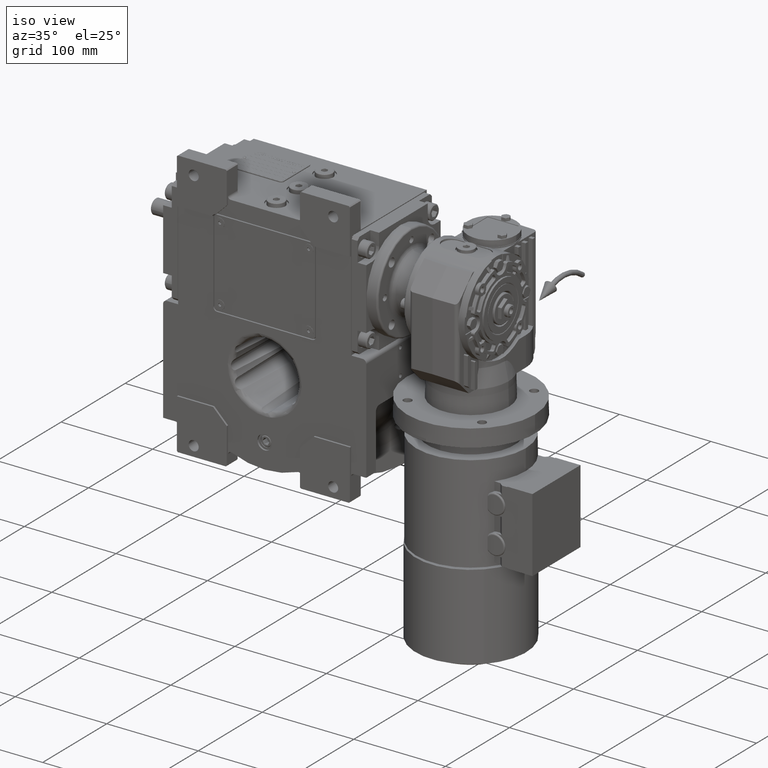
[diagram: clean part render]
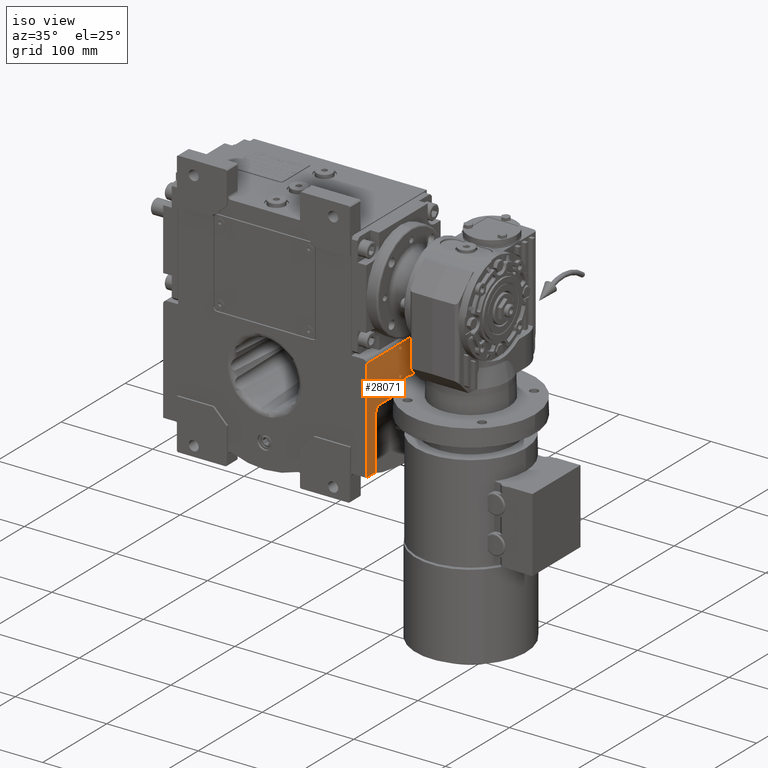
[diagram: same view with one face highlighted and labeled with its STEP entity id]
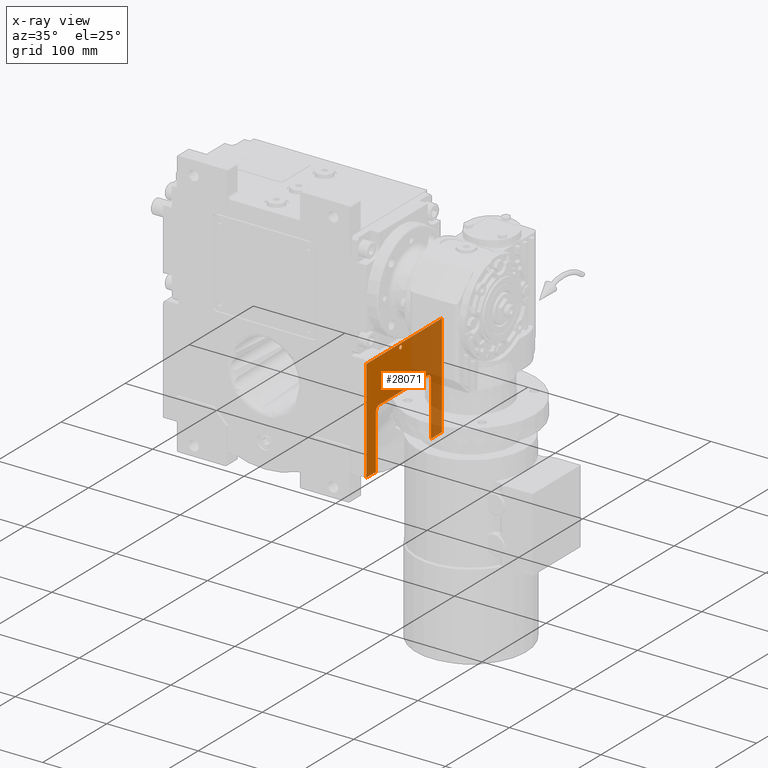
[diagram: x-ray of the same camera — body ghosted, the highlighted face saturated]
A machine part, iso view. The second image highlights one B-rep face of the part: STEP entity #28071.
The next image is the same camera in x-ray: the body ghosted, the highlighted face saturated — about 43% of this face is hidden behind the body in this view.
In plain terms, the highlighted planar face has unit normal (1, 0, -0).
Its self-contained STEP definition (entity closure, byte-faithful):
#464 = EDGE_CURVE ( 'NONE', #56667, #6692, #89729, .T. ) ;
#985 = CARTESIAN_POINT ( 'NONE',  ( 110.9999999999999574, 45.57333248245377177, -8.163234121736138604 ) ) ;
#1204 = CIRCLE ( 'NONE', #22630, 2.100000000000000089 ) ;
#1499 = CARTESIAN_POINT ( 'NONE',  ( 110.9999999999999858, 46.71432597020061195, -9.644020489599460788 ) ) ;
#2015 = CARTESIAN_POINT ( 'NONE',  ( 111.0000000000000000, 46.02269117539044885, -8.607473829627073414 ) ) ;
#2478 = CARTESIAN_POINT ( 'NONE',  ( 110.9999999999999858, 47.37382107352491545, -17.01630155678829581 ) ) ;
#3462 = EDGE_CURVE ( 'NONE', #67907, #93886, #23219, .T. ) ;
#4496 = EDGE_CURVE ( 'NONE', #24629, #56468, #93172, .T. ) ;
#5657 = CARTESIAN_POINT ( 'NONE',  ( 111.0000000000000000, -2.100000000000000089, 9.000000000000000000 ) ) ;
#6645 = EDGE_LOOP ( 'NONE', ( #7192, #20049 ) ) ;
#6692 = VERTEX_POINT ( 'NONE', #31850 ) ;
#7192 = ORIENTED_EDGE ( 'NONE', *, *, #97587, .F. ) ;
#7612 = DIRECTION ( 'NONE',  ( 0.000000000000000000, -1.000000000000000000, 0.000000000000000000 ) ) ;
#8720 = CARTESIAN_POINT ( 'NONE',  ( 110.9999999999999147, 47.39592956473512686, -17.94582316151957713 ) ) ;
#9185 = ORIENTED_EDGE ( 'NONE', *, *, #102412, .T. ) ;
#10767 = CARTESIAN_POINT ( 'NONE',  ( 110.9999999999999858, 47.35262548411426309, -16.14045418600772308 ) ) ;
#11170 = CIRCLE ( 'NONE', #62549, 2.100000000000000089 ) ;
#13472 = CARTESIAN_POINT ( 'NONE',  ( 111.0000000000000000, 47.50000000000000000, -71.43528539874399996 ) ) ;
#14288 = DIRECTION ( 'NONE',  ( 1.000000000000000000, 0.000000000000000000, -6.102469138343910279E-16 ) ) ;
#15369 = LINE ( 'NONE', #79179, #32213 ) ;
#16513 = DIRECTION ( 'NONE',  ( 0.000000000000000000, 1.000000000000000000, -1.652117596168387559E-15 ) ) ;
#17278 = VERTEX_POINT ( 'NONE', #60478 ) ;
#17472 = ORIENTED_EDGE ( 'NONE', *, *, #29917, .F. ) ;
#17541 = CARTESIAN_POINT ( 'NONE',  ( 110.9999998869266022, 47.24161831933449918, -11.75654022255562126 ) ) ;
#18821 = ORIENTED_EDGE ( 'NONE', *, *, #31999, .F. ) ;
#19036 = CARTESIAN_POINT ( 'NONE',  ( 110.9999999999999716, 47.37947912676571605, -17.25058397870262894 ) ) ;
#19120 = CARTESIAN_POINT ( 'NONE',  ( 111.0000000000000000, -3.552713678800499352E-15, 37.00000000000000000 ) ) ;
#20049 = ORIENTED_EDGE ( 'NONE', *, *, #91976, .F. ) ;
#20061 = VECTOR ( 'NONE', #30210, 1000.000000000000000 ) ;
#22246 = DIRECTION ( 'NONE',  ( 1.000000000000000000, -1.144832152701696034E-29, -6.767073673905710947E-15 ) ) ;
#22630 = AXIS2_PLACEMENT_3D ( 'NONE', #31049, #22246, #16513 ) ;
#23219 =( BOUNDED_CURVE ( )  B_SPLINE_CURVE ( 3, ( #45950, #61548, #94772, #77626 ),
 .UNSPECIFIED., .F., .F. ) 
 B_SPLINE_CURVE_WITH_KNOTS ( ( 4, 4 ),
 ( 1.570796326796059850, 3.141592653590837614 ),
 .UNSPECIFIED. ) 
 CURVE ( )  GEOMETRIC_REPRESENTATION_ITEM ( )  RATIONAL_B_SPLINE_CURVE ( ( 1.000000000000000000, 0.8047378541243930261, 0.8047378541243930261, 1.000000000000000000 ) ) 
 REPRESENTATION_ITEM ( '' )  );
#24482 = DIRECTION ( 'NONE',  ( 1.000000000000000000, 0.000000000000000000, 0.000000000000000000 ) ) ;
#24629 = VERTEX_POINT ( 'NONE', #5657 ) ;
#24815 = CARTESIAN_POINT ( 'NONE',  ( 110.9999999999999716, 46.32234190798379103, -8.967372511752580877 ) ) ;
#25213 = LINE ( 'NONE', #26229, #85895 ) ;
#25399 = CARTESIAN_POINT ( 'NONE',  ( 111.0000000000000000, -38.50000000000000000, -71.43528539874399996 ) ) ;
#25782 = CARTESIAN_POINT ( 'NONE',  ( 111.0000000000000000, -33.50000000000000000, -7.000000000000000000 ) ) ;
#25864 = CARTESIAN_POINT ( 'NONE',  ( 111.0000000000000000, -2.100000000000000089, 37.00000000000000000 ) ) ;
#26180 = AXIS2_PLACEMENT_3D ( 'NONE', #85383, #14288, #46927 ) ;
#26229 = CARTESIAN_POINT ( 'NONE',  ( 111.0000000000000000, 47.50000000000000000, -71.43528539874399996 ) ) ;
#26747 = EDGE_CURVE ( 'NONE', #93886, #62709, #86381, .T. ) ;
#28071 = ADVANCED_FACE ( 'NONE', ( #77074, #45396, #37129 ), #69811, .T. ) ;
#28523 = CARTESIAN_POINT ( 'NONE',  ( 110.9999999998199911, 42.40620941354220008, -7.000000000048170357 ) ) ;
#29320 = CARTESIAN_POINT ( 'NONE',  ( 111.0000000000000000, -33.50000000000000000, -6.999999999999920064 ) ) ;
#29917 = EDGE_CURVE ( 'NONE', #59836, #75219, #25213, .T. ) ;
#30210 = DIRECTION ( 'NONE',  ( -6.319570704518690450E-16, 0.000000000000000000, -1.000000000000000000 ) ) ;
#30235 = ORIENTED_EDGE ( 'NONE', *, *, #3462, .T. ) ;
#31049 = CARTESIAN_POINT ( 'NONE',  ( 111.0000000000000000, -3.552713678800499352E-15, 9.000000000000000000 ) ) ;
#31627 = ORIENTED_EDGE ( 'NONE', *, *, #85727, .T. ) ;
#31850 = CARTESIAN_POINT ( 'NONE',  ( 111.0000000000000000, -53.50000000000000000, 41.00000000000000000 ) ) ;
#31999 = EDGE_CURVE ( 'NONE', #17278, #45749, #101376, .T. ) ;
#32213 = VECTOR ( 'NONE', #7612, 1000.000000000000000 ) ;
#32431 = ORIENTED_EDGE ( 'NONE', *, *, #51255, .T. ) ;
#33071 = CARTESIAN_POINT ( 'NONE',  ( 111.0000000000000000, 47.50000000000000000, -25.44626115736659955 ) ) ;
#36689 = LINE ( 'NONE', #91747, #69098 ) ;
#37129 = FACE_OUTER_BOUND ( 'NONE', #100364, .T. ) ;
#39247 = VERTEX_POINT ( 'NONE', #57168 ) ;
#39873 = CARTESIAN_POINT ( 'NONE',  ( 110.9999999999999858, 44.09122816550473800, -7.296733665612587849 ) ) ;
#40059 = CARTESIAN_POINT ( 'NONE',  ( 111.0000000000000000, -3.774758283725534604E-15, 37.00000000000000000 ) ) ;
#40389 = CARTESIAN_POINT ( 'NONE',  ( 110.9999999999999858, 44.80922033797410364, -7.621655160203046009 ) ) ;
#40859 = CARTESIAN_POINT ( 'NONE',  ( 110.9999999999999574, 47.26250817921272329, -12.53135113091263264 ) ) ;
#41519 = B_SPLINE_CURVE_WITH_KNOTS ( 'NONE', 3,
 ( #81841, #40859, #58481, #10767, #2478, #56938, #19036, #80291, #50696, #8720, #95912, #41885, #33071 ),
 .UNSPECIFIED., .F., .F.,
 ( 4, 1, 1, 1, 2, 2, 1, 1, 4 ),
 ( 0.000000000000000000, 0.2499999999999993339, 0.3749999999999991673, 0.3906249999999991673, 0.3984374999999988898, 0.4062499999999986122, 0.4374999999999987788, 0.4999999999999991118, 1.000000000000000000 ),
 .UNSPECIFIED. ) ;
#41885 = CARTESIAN_POINT ( 'NONE',  ( 110.9999999999999574, 47.49300976463167956, -23.37757664004382363 ) ) ;
#42076 = CARTESIAN_POINT ( 'NONE',  ( 110.9999998869266022, 47.24161831933449918, -11.75654022255562126 ) ) ;
#42470 = DIRECTION ( 'NONE',  ( 6.319570704518680589E-16, 0.000000000000000000, 1.000000000000000000 ) ) ;
#42872 = VECTOR ( 'NONE', #42470, 1000.000000000000000 ) ;
#44197 = VECTOR ( 'NONE', #69789, 1000.000000000000000 ) ;
#45396 = FACE_BOUND ( 'NONE', #6645, .T. ) ;
#45749 = VERTEX_POINT ( 'NONE', #68116 ) ;
#45950 = CARTESIAN_POINT ( 'NONE',  ( 111.0000000000000000, -38.50000000000000000, -12.17638090205032064 ) ) ;
#46621 = DIRECTION ( 'NONE',  ( 0.000000000000000000, 1.000000000000000000, 8.359326303060000099E-16 ) ) ;
#46927 = DIRECTION ( 'NONE',  ( -6.102469138343910279E-16, 0.000000000000000000, -1.000000000000000000 ) ) ;
#47283 = CARTESIAN_POINT ( 'NONE',  ( 111.0000000000000000, -38.50000000000000000, -12.17638090205032064 ) ) ;
#48153 = CARTESIAN_POINT ( 'NONE',  ( 110.9999999999999716, 43.19493036065947678, -7.045511204842088482 ) ) ;
#49273 = DIRECTION ( 'NONE',  ( 7.194288269028780008E-16, 0.000000000000000000, 1.000000000000000000 ) ) ;
#50258 = CARTESIAN_POINT ( 'NONE',  ( 111.0000000000000000, -53.50000000000000000, -71.43528539874399996 ) ) ;
#50696 = CARTESIAN_POINT ( 'NONE',  ( 110.9999999999999574, 47.38500262563848509, -17.48094355212767326 ) ) ;
#50791 = DIRECTION ( 'NONE',  ( 1.000000000000000000, 0.000000000000000000, 0.000000000000000000 ) ) ;
#51255 = EDGE_CURVE ( 'NONE', #59836, #45749, #101707, .T. ) ;
#51731 = EDGE_CURVE ( 'NONE', #17278, #6692, #15369, .T. ) ;
#52991 = DIRECTION ( 'NONE',  ( 0.000000000000000000, -1.000000000000000000, 1.652117596168387559E-15 ) ) ;
#53512 = ORIENTED_EDGE ( 'NONE', *, *, #51731, .T. ) ;
#53551 = CIRCLE ( 'NONE', #81731, 2.100000000000000089 ) ;
#54808 = CARTESIAN_POINT ( 'NONE',  ( 111.0000000000000000, 2.100000000000000089, 37.00000000000000000 ) ) ;
#55606 = ORIENTED_EDGE ( 'NONE', *, *, #93842, .T. ) ;
#55616 = VERTEX_POINT ( 'NONE', #25864 ) ;
#56468 = VERTEX_POINT ( 'NONE', #78288 ) ;
#56497 = EDGE_CURVE ( 'NONE', #56468, #24629, #1204, .T. ) ;
#56667 = VERTEX_POINT ( 'NONE', #82402 ) ;
#56938 = CARTESIAN_POINT ( 'NONE',  ( 110.9999999999999574, 47.37721023959501565, -17.15660303781627150 ) ) ;
#56982 = CARTESIAN_POINT ( 'NONE',  ( 110.9999999999999858, 47.09297238319260259, -10.50863868843677196 ) ) ;
#57168 = CARTESIAN_POINT ( 'NONE',  ( 111.0000000000000000, -38.50000000000000000, -71.43528539874399996 ) ) ;
#57835 = VERTEX_POINT ( 'NONE', #54808 ) ;
#58481 = CARTESIAN_POINT ( 'NONE',  ( 110.9999999999999432, 47.30109702303251140, -14.03657177442504000 ) ) ;
#59557 = DIRECTION ( 'NONE',  ( 0.000000000000000000, 1.000000000000000000, 0.000000000000000000 ) ) ;
#59836 = VERTEX_POINT ( 'NONE', #90499 ) ;
#60085 = CARTESIAN_POINT ( 'NONE',  ( 111.0000000000000000, 47.50000000000000000, -25.44626115736659955 ) ) ;
#60478 = CARTESIAN_POINT ( 'NONE',  ( 111.0000000000000000, 64.50000000000000000, 41.00000000000000000 ) ) ;
#60612 = ORIENTED_EDGE ( 'NONE', *, *, #26747, .T. ) ;
#60685 = EDGE_LOOP ( 'NONE', ( #68753, #89896 ) ) ;
#61548 = CARTESIAN_POINT ( 'NONE',  ( 110.9999999999999574, -38.49999999999984368, -9.144127173638265660 ) ) ;
#61787 = B_SPLINE_CURVE_WITH_KNOTS ( 'NONE', 3,
 ( #63239, #94934, #48153, #64271, #79307, #39873, #71539, #40389, #72037, #985, #2015, #24815, #65296, #1499, #86601, #64795, #56982, #88643, #17541 ),
 .UNSPECIFIED., .F., .F.,
 ( 4, 1, 2, 2, 2, 2, 1, 1, 2, 2, 4 ),
 ( 0.000000000000000000, 0.1250000000000034972, 0.1875000000000038580, 0.2500000000000042188, 0.3750000000000024425, 0.5000000000000007772, 0.6249999999999996669, 0.6874999999999983347, 0.7187499999999980016, 0.7499999999999976685, 1.000000000000000000 ),
 .UNSPECIFIED. ) ;
#62394 = DIRECTION ( 'NONE',  ( 0.000000000000000000, -1.000000000000000000, 0.000000000000000000 ) ) ;
#62549 = AXIS2_PLACEMENT_3D ( 'NONE', #19120, #50791, #91802 ) ;
#62709 = VERTEX_POINT ( 'NONE', #28523 ) ;
#63239 = CARTESIAN_POINT ( 'NONE',  ( 110.9999999998199911, 42.40620941354220008, -7.000000000048170357 ) ) ;
#64271 = CARTESIAN_POINT ( 'NONE',  ( 111.0000000000000000, 43.64749740373729026, -7.156724411048934087 ) ) ;
#64795 = CARTESIAN_POINT ( 'NONE',  ( 111.0000000000000000, 46.81641276431729892, -9.859722511584925186 ) ) ;
#65296 = CARTESIAN_POINT ( 'NONE',  ( 110.9999999999999716, 46.60653992690171776, -9.434012384678485574 ) ) ;
#67907 = VERTEX_POINT ( 'NONE', #47283 ) ;
#68116 = CARTESIAN_POINT ( 'NONE',  ( 111.0000000000000000, 64.50000000000000000, -71.43528539874399996 ) ) ;
#68753 = ORIENTED_EDGE ( 'NONE', *, *, #56497, .F. ) ;
#69098 = VECTOR ( 'NONE', #59557, 1000.000000000000000 ) ;
#69789 = DIRECTION ( 'NONE',  ( 0.000000000000000000, 1.000000000000000000, 0.000000000000000000 ) ) ;
#69811 = PLANE ( 'NONE',  #26180 ) ;
#71539 = CARTESIAN_POINT ( 'NONE',  ( 111.0000000000000000, 44.53223597866741557, -7.476123301251936581 ) ) ;
#72037 = CARTESIAN_POINT ( 'NONE',  ( 110.9999999999999858, 45.32914735765071867, -7.964596415155019038 ) ) ;
#73481 = EDGE_CURVE ( 'NONE', #56667, #39247, #36689, .T. ) ;
#75219 = VERTEX_POINT ( 'NONE', #60085 ) ;
#77074 = FACE_BOUND ( 'NONE', #60685, .T. ) ;
#77097 = VERTEX_POINT ( 'NONE', #42076 ) ;
#77626 = CARTESIAN_POINT ( 'NONE',  ( 111.0000000000000000, -33.50000000000000000, -7.000000000000000000 ) ) ;
#78288 = CARTESIAN_POINT ( 'NONE',  ( 111.0000000000000000, 2.100000000000000089, 9.000000000000000000 ) ) ;
#79179 = CARTESIAN_POINT ( 'NONE',  ( 111.0000000000000000, 64.50000000000000000, 41.00000000000000000 ) ) ;
#79288 = VECTOR ( 'NONE', #49273, 1000.000000000000000 ) ;
#79307 = CARTESIAN_POINT ( 'NONE',  ( 111.0000000000000284, 43.94558323494667462, -7.245586984187109891 ) ) ;
#80291 = CARTESIAN_POINT ( 'NONE',  ( 111.0000000000000000, 47.38034144301978046, -17.28637658354777784 ) ) ;
#81731 = AXIS2_PLACEMENT_3D ( 'NONE', #40059, #24482, #62394 ) ;
#81841 = CARTESIAN_POINT ( 'NONE',  ( 110.9999998869266022, 47.24161831933449918, -11.75654022255562126 ) ) ;
#81974 = ORIENTED_EDGE ( 'NONE', *, *, #464, .F. ) ;
#82402 = CARTESIAN_POINT ( 'NONE',  ( 111.0000000000000000, -53.50000000000000000, -71.43528539874399996 ) ) ;
#84025 = ORIENTED_EDGE ( 'NONE', *, *, #73481, .T. ) ;
#85383 = CARTESIAN_POINT ( 'NONE',  ( 111.0000000000000000, -53.50000000000000000, 45.00000000000000000 ) ) ;
#85727 = EDGE_CURVE ( 'NONE', #39247, #67907, #96561, .T. ) ;
#85895 = VECTOR ( 'NONE', #87503, 1000.000000000000000 ) ;
#86381 = LINE ( 'NONE', #29320, #44197 ) ;
#86601 = CARTESIAN_POINT ( 'NONE',  ( 110.9999999999999716, 46.78306930847411138, -9.786252467980729008 ) ) ;
#87503 = DIRECTION ( 'NONE',  ( 6.180107079730629528E-16, 0.000000000000000000, 1.000000000000000000 ) ) ;
#88643 = CARTESIAN_POINT ( 'NONE',  ( 110.9999999999999858, 47.22446425046381080, -11.11687756950517070 ) ) ;
#89729 = LINE ( 'NONE', #50258, #42872 ) ;
#89896 = ORIENTED_EDGE ( 'NONE', *, *, #4496, .F. ) ;
#90499 = CARTESIAN_POINT ( 'NONE',  ( 111.0000000000000000, 47.50000000000000000, -71.43528539874399996 ) ) ;
#91567 = AXIS2_PLACEMENT_3D ( 'NONE', #91982, #101807, #52991 ) ;
#91747 = CARTESIAN_POINT ( 'NONE',  ( 111.0000000000000000, -53.50000000000000000, -71.43528539874399996 ) ) ;
#91802 = DIRECTION ( 'NONE',  ( 0.000000000000000000, 1.000000000000000000, 0.000000000000000000 ) ) ;
#91976 = EDGE_CURVE ( 'NONE', #55616, #57835, #53551, .T. ) ;
#91982 = CARTESIAN_POINT ( 'NONE',  ( 111.0000000000000000, -3.774758283725534604E-15, 9.000000000000000000 ) ) ;
#93060 = CARTESIAN_POINT ( 'NONE',  ( 111.0000000000000000, 64.50000000000000000, 41.00000000000000000 ) ) ;
#93172 = CIRCLE ( 'NONE', #91567, 2.100000000000000089 ) ;
#93842 = EDGE_CURVE ( 'NONE', #77097, #75219, #41519, .T. ) ;
#93886 = VERTEX_POINT ( 'NONE', #25782 ) ;
#94772 = CARTESIAN_POINT ( 'NONE',  ( 110.9999999999999574, -36.42893218813446765, -7.000000000000003553 ) ) ;
#94934 = CARTESIAN_POINT ( 'NONE',  ( 110.9999999999999858, 42.72604842879050580, -7.000539959136501622 ) ) ;
#95912 = CARTESIAN_POINT ( 'NONE',  ( 110.9999999999999289, 47.46019542777067812, -20.85051949887152745 ) ) ;
#96561 = LINE ( 'NONE', #25399, #79288 ) ;
#97587 = EDGE_CURVE ( 'NONE', #57835, #55616, #11170, .T. ) ;
#98536 = VECTOR ( 'NONE', #46621, 1000.000000000000000 ) ;
#100364 = EDGE_LOOP ( 'NONE', ( #81974, #84025, #31627, #30235, #60612, #9185, #55606, #17472, #32431, #18821, #53512 ) ) ;
#101376 = LINE ( 'NONE', #93060, #20061 ) ;
#101707 = LINE ( 'NONE', #13472, #98536 ) ;
#101807 = DIRECTION ( 'NONE',  ( 1.000000000000000000, 0.000000000000000000, 0.000000000000000000 ) ) ;
#102412 = EDGE_CURVE ( 'NONE', #62709, #77097, #61787, .T. ) ;